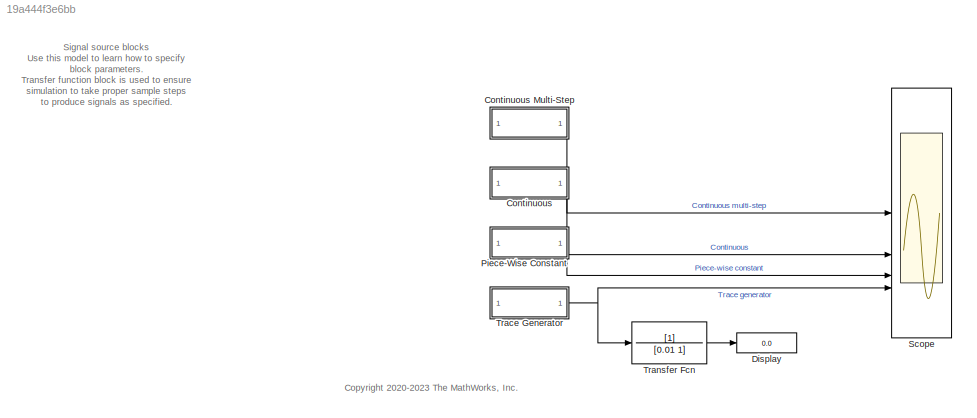
MODEL mdl_19a444f3e6bb
KIND model
CONFIG AbsTol = auto
CONFIG EnableMultiTasking = off
CONFIG FixedStep = auto
CONFIG MaxStep = auto
CONFIG MinStep = auto
CONFIG RelTol = 1e-3
CONFIG SampleTimeConstraint = Unconstrained
CONFIG SolverName = VariableStepAuto
CONFIG StartTime = 0.0
CONFIG StopTime = 50
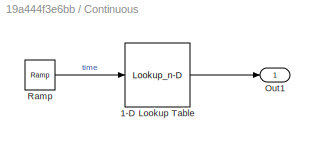
BLOCK [SubSystem] Continuous
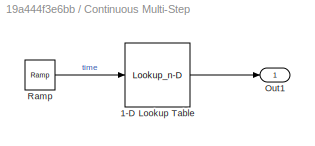
BLOCK [SubSystem] Continuous Multi-Step
BLOCK [Lookup_n-D] Continuous Multi-Step/1-D Lookup Table
  BreakpointsForDimension1 = sig.Data.X
  InputPortMap = u0
  InternalRulePriority = Speed
  NumberOfTableDimensions = 1
  RndMeth = Simplest
  Table = sig.Data.Y
BLOCK [Outport] Continuous Multi-Step/Out1
BLOCK [Reference] Continuous Multi-Step/Ramp  REF=simulink/Sources/Ramp
  AttributesFormatString = Slope: %<slope>\nStart time: %<start>\nInitial output: %<InitialOutput>
  SourceBlock = simulink/Sources/Ramp
  SourceType = Ramp
BLOCK [Lookup_n-D] Continuous/1-D Lookup Table
  BreakpointsForDimension1 = sig.Data.X
  ExtrapMethod = Clip
  InputPortMap = u0
  InternalRulePriority = Speed
  NumberOfTableDimensions = 1
  RndMeth = Simplest
  Table = sig.Data.Y
  UseLastTableValue = on
BLOCK [Outport] Continuous/Out1
BLOCK [Reference] Continuous/Ramp  REF=simulink/Sources/Ramp
  AttributesFormatString = Slope: %<slope>\nStart time: %<start>\nInitial output: %<InitialOutput>
  SourceBlock = simulink/Sources/Ramp
  SourceType = Ramp
BLOCK [Display] Display
  Decimation = 1
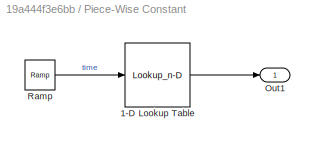
BLOCK [SubSystem] Piece-Wise Constant
BLOCK [Lookup_n-D] Piece-Wise Constant/1-D Lookup Table
  BreakpointsForDimension1 = sig.Data.X
  InputPortMap = u0
  InternalRulePriority = Speed
  InterpMethod = Flat
  NumberOfTableDimensions = 1
  RndMeth = Simplest
  Table = sig.Data.Y
BLOCK [Outport] Piece-Wise Constant/Out1
BLOCK [Reference] Piece-Wise Constant/Ramp  REF=simulink/Sources/Ramp
  AttributesFormatString = Slope: %<slope>\nStart time: %<start>\nInitial output: %<InitialOutput>
  SourceBlock = simulink/Sources/Ramp
  SourceType = Ramp
BLOCK [Scope] Scope
  Floating = off
  NumInputPorts = 4
  ScopeSpecificationString = Simulink.scopes.TimeScopeBlockCfg('CurrentConfiguration', extmgr.ConfigurationSet(extmgr.Configuration('Core','General UI',true),extmgr.Configuration('Core','Source UI',true),extmgr.Configuration('Sources','WiredSimulink',true),extmgr.Configuration('Visuals','Time Domain',true,'SerializedDisplays',{struct('MinYLimReal','-1.12498','MaxYLimReal','10.12484','YLabelReal','','MinYLimMag','0.00000','Max...<+3441ch>
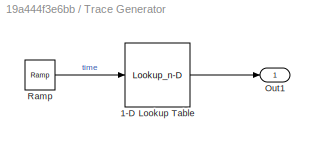
BLOCK [SubSystem] Trace Generator
BLOCK [Lookup_n-D] Trace Generator/1-D Lookup Table
  BreakpointsForDimension1 = sig.Data.X
  InputPortMap = u0
  InternalRulePriority = Speed
  NumberOfTableDimensions = 1
  RndMeth = Simplest
  Table = sig.Data.Y
BLOCK [Outport] Trace Generator/Out1
BLOCK [Reference] Trace Generator/Ramp  REF=simulink/Sources/Ramp
  AttributesFormatString = Slope: %<slope>\nStart time: %<start>\nInitial output: %<InitialOutput>
  SourceBlock = simulink/Sources/Ramp
  SourceType = Ramp
BLOCK [TransferFcn] Transfer Fcn
  Denominator = [0.01 1]
ANNOTATION (root): <copyright redacted>
ANNOTATION (root): Signal source blocks Use this model to learn how to specify block parameters. Transfer function block is used to ensure simulation to take proper sample steps to produce signals as specified.
LINE Continuous Multi-Step/1-D Lookup Table:1 -> Continuous Multi-Step/Out1:1
LINE Continuous Multi-Step/Ramp:1 -> Continuous Multi-Step/1-D Lookup Table:1
LINE Continuous Multi-Step:1 -> Scope:1
LINE Continuous/1-D Lookup Table:1 -> Continuous/Out1:1
LINE Continuous/Ramp:1 -> Continuous/1-D Lookup Table:1
LINE Continuous:1 -> Scope:2
LINE Piece-Wise Constant/1-D Lookup Table:1 -> Piece-Wise Constant/Out1:1
LINE Piece-Wise Constant/Ramp:1 -> Piece-Wise Constant/1-D Lookup Table:1
LINE Piece-Wise Constant:1 -> Scope:3
LINE Trace Generator/1-D Lookup Table:1 -> Trace Generator/Out1:1
LINE Trace Generator/Ramp:1 -> Trace Generator/1-D Lookup Table:1
NET Trace Generator:1 -> Scope:4, Transfer Fcn:1
LINE Transfer Fcn:1 -> Display:1
note: NET lines group one-source signal fan-out (src -> all destinations, sorted); 1:1 wires keep LINE
